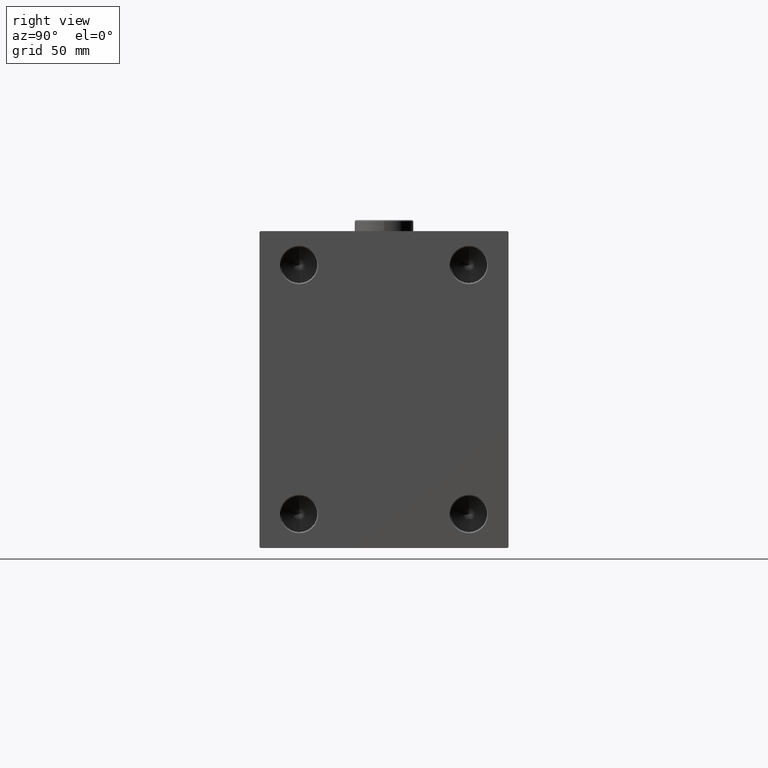
[diagram: clean part render]
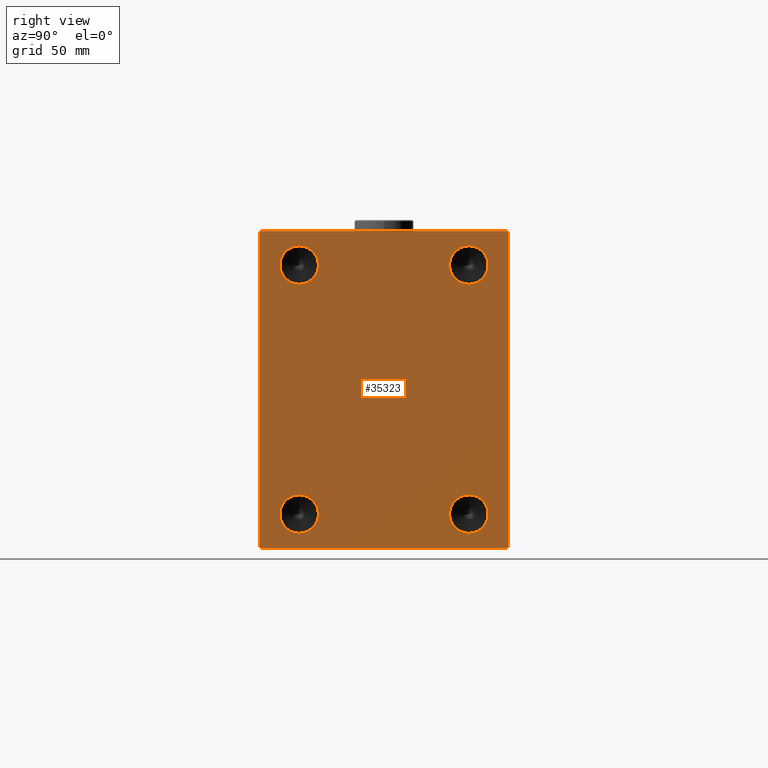
[diagram: same view with one face highlighted and labeled with its STEP entity id]
A machine part, right view. The second image highlights one B-rep face of the part: STEP entity #35323.
In plain terms, the highlighted planar face has unit normal (1, 0, 0).
Its self-contained STEP definition (entity closure, byte-faithful):
#43 = DIRECTION ( 'NONE',  ( 1.000000000000000000, -0.000000000000000000, -0.000000000000000000 ) ) ;
#202 = DIRECTION ( 'NONE',  ( 0.000000000000000000, 0.000000000000000000, -1.000000000000000000 ) ) ;
#1684 = LINE ( 'NONE', #11847, #35828 ) ;
#1994 = VERTEX_POINT ( 'NONE', #41648 ) ;
#2616 = FACE_BOUND ( 'NONE', #36045, .T. ) ;
#2831 = CIRCLE ( 'NONE', #30108, 8.499999999999980460 ) ;
#3112 = LINE ( 'NONE', #21550, #18092 ) ;
#3979 = DIRECTION ( 'NONE',  ( 1.000000000000000000, -0.000000000000000000, -0.000000000000000000 ) ) ;
#4120 = AXIS2_PLACEMENT_3D ( 'NONE', #26092, #43008, #4411 ) ;
#4165 = VERTEX_POINT ( 'NONE', #30315 ) ;
#4321 = EDGE_CURVE ( 'NONE', #14879, #13146, #37321, .T. ) ;
#4355 = CIRCLE ( 'NONE', #30915, 8.499999999999980460 ) ;
#4411 = DIRECTION ( 'NONE',  ( 0.000000000000000000, 0.000000000000000000, -1.000000000000000000 ) ) ;
#4582 = LINE ( 'NONE', #11526, #26140 ) ;
#5251 = CARTESIAN_POINT ( 'NONE',  ( 253.0000000000000000, -55.00000000000000000, 69.50000000000005684 ) ) ;
#6205 = CIRCLE ( 'NONE', #23889, 8.499999999999980460 ) ;
#6378 = DIRECTION ( 'NONE',  ( 0.000000000000000000, 0.000000000000000000, -1.000000000000000000 ) ) ;
#6736 = CARTESIAN_POINT ( 'NONE',  ( 253.0000000000000000, -37.49999999999999289, 63.49999999999997158 ) ) ;
#6969 = AXIS2_PLACEMENT_3D ( 'NONE', #18265, #15954, #44146 ) ;
#7138 = CARTESIAN_POINT ( 'NONE',  ( 253.0000000000000000, -37.49999999999999289, -54.99999999999999289 ) ) ;
#7741 = ORIENTED_EDGE ( 'NONE', *, *, #17975, .F. ) ;
#7852 = VERTEX_POINT ( 'NONE', #36877 ) ;
#8704 = CARTESIAN_POINT ( 'NONE',  ( 253.0000000000000000, -55.00000000000000000, -69.50000000000000000 ) ) ;
#8923 = EDGE_CURVE ( 'NONE', #44920, #17819, #23210, .T. ) ;
#9022 = EDGE_CURVE ( 'NONE', #44117, #15001, #2831, .T. ) ;
#9216 = EDGE_LOOP ( 'NONE', ( #40010, #39411 ) ) ;
#9557 = FACE_BOUND ( 'NONE', #30923, .T. ) ;
#9573 = EDGE_CURVE ( 'NONE', #24885, #17948, #27495, .T. ) ;
#9956 = CARTESIAN_POINT ( 'NONE',  ( 253.0000000000000000, 54.50000000000007105, -69.99999999999998579 ) ) ;
#10100 = DIRECTION ( 'NONE',  ( 1.000000000000000000, -0.000000000000000000, -0.000000000000000000 ) ) ;
#10241 = CARTESIAN_POINT ( 'NONE',  ( 253.0000000000000000, -37.49999999999999289, 55.00000000000000711 ) ) ;
#10375 = DIRECTION ( 'NONE',  ( 1.000000000000000000, -0.000000000000000000, -0.000000000000000000 ) ) ;
#10497 = DIRECTION ( 'NONE',  ( 0.000000000000000000, -9.912705577010325549E-17, 1.000000000000000000 ) ) ;
#10634 = ORIENTED_EDGE ( 'NONE', *, *, #8923, .T. ) ;
#10667 = DIRECTION ( 'NONE',  ( 0.000000000000000000, 0.000000000000000000, -1.000000000000000000 ) ) ;
#10722 = AXIS2_PLACEMENT_3D ( 'NONE', #42101, #43, #10667 ) ;
#10889 = ORIENTED_EDGE ( 'NONE', *, *, #21274, .T. ) ;
#11526 = CARTESIAN_POINT ( 'NONE',  ( 253.0000000000000000, 54.99999999999999289, 70.00000000000001421 ) ) ;
#11847 = CARTESIAN_POINT ( 'NONE',  ( 253.0000000000000000, -55.00000000000000000, 70.00000000000000000 ) ) ;
#12835 = CARTESIAN_POINT ( 'NONE',  ( 253.0000000000000000, -62.24999999999964473, 62.25000000000050449 ) ) ;
#13012 = DIRECTION ( 'NONE',  ( 0.000000000000000000, 0.000000000000000000, -1.000000000000000000 ) ) ;
#13146 = VERTEX_POINT ( 'NONE', #24746 ) ;
#14008 = DIRECTION ( 'NONE',  ( 0.000000000000000000, 0.000000000000000000, -1.000000000000000000 ) ) ;
#14879 = VERTEX_POINT ( 'NONE', #36848 ) ;
#15001 = VERTEX_POINT ( 'NONE', #6736 ) ;
#15097 = CARTESIAN_POINT ( 'NONE',  ( 253.0000000000000000, -37.49999999999999289, 46.50000000000004263 ) ) ;
#15499 = ORIENTED_EDGE ( 'NONE', *, *, #31790, .T. ) ;
#15600 = DIRECTION ( 'NONE',  ( 0.000000000000000000, -0.7071067811865524577, -0.7071067811865426878 ) ) ;
#15954 = DIRECTION ( 'NONE',  ( 1.000000000000000000, -0.000000000000000000, -0.000000000000000000 ) ) ;
#16053 = ORIENTED_EDGE ( 'NONE', *, *, #9022, .F. ) ;
#16078 = DIRECTION ( 'NONE',  ( 0.000000000000000000, 1.000000000000000000, 1.261617073437677752E-16 ) ) ;
#16876 = ORIENTED_EDGE ( 'NONE', *, *, #21938, .T. ) ;
#17181 = LINE ( 'NONE', #27568, #34534 ) ;
#17410 = DIRECTION ( 'NONE',  ( -0.000000000000000000, 0.7071067811865425767, 0.7071067811865525687 ) ) ;
#17819 = VERTEX_POINT ( 'NONE', #5251 ) ;
#17948 = VERTEX_POINT ( 'NONE', #42657 ) ;
#17975 = EDGE_CURVE ( 'NONE', #35530, #4165, #6205, .T. ) ;
#18092 = VECTOR ( 'NONE', #10497, 1000.000000000000000 ) ;
#18265 = CARTESIAN_POINT ( 'NONE',  ( 253.0000000000000000, 37.50000000000000000, 55.00000000000000711 ) ) ;
#18697 = EDGE_CURVE ( 'NONE', #13146, #14879, #44594, .T. ) ;
#19052 = CIRCLE ( 'NONE', #22744, 8.499999999999980460 ) ;
#19526 = LINE ( 'NONE', #33646, #36389 ) ;
#20918 = DIRECTION ( 'NONE',  ( 1.000000000000000000, -0.000000000000000000, -0.000000000000000000 ) ) ;
#21274 = EDGE_CURVE ( 'NONE', #1994, #24885, #3112, .T. ) ;
#21376 = EDGE_CURVE ( 'NONE', #17819, #27665, #1684, .T. ) ;
#21550 = CARTESIAN_POINT ( 'NONE',  ( 253.0000000000000000, 55.00000000000000711, -69.99999999999998579 ) ) ;
#21725 = AXIS2_PLACEMENT_3D ( 'NONE', #7138, #10375, #202 ) ;
#21938 = EDGE_CURVE ( 'NONE', #27665, #22021, #29793, .T. ) ;
#22021 = VERTEX_POINT ( 'NONE', #38362 ) ;
#22220 = DIRECTION ( 'NONE',  ( 0.000000000000000000, 0.000000000000000000, -1.000000000000000000 ) ) ;
#22612 = EDGE_CURVE ( 'NONE', #27323, #7852, #24023, .T. ) ;
#22744 = AXIS2_PLACEMENT_3D ( 'NONE', #10241, #3979, #42348 ) ;
#22867 = VERTEX_POINT ( 'NONE', #9956 ) ;
#22935 = EDGE_CURVE ( 'NONE', #17948, #44920, #4582, .T. ) ;
#23210 = LINE ( 'NONE', #12835, #44147 ) ;
#23472 = CARTESIAN_POINT ( 'NONE',  ( 253.0000000000000000, 37.50000000000000000, -54.99999999999999289 ) ) ;
#23696 = VECTOR ( 'NONE', #41846, 1000.000000000000114 ) ;
#23889 = AXIS2_PLACEMENT_3D ( 'NONE', #27861, #20918, #35047 ) ;
#24023 = CIRCLE ( 'NONE', #4120, 8.499999999999980460 ) ;
#24746 = CARTESIAN_POINT ( 'NONE',  ( 253.0000000000000000, 37.50000000000000000, 63.49999999999997158 ) ) ;
#24885 = VERTEX_POINT ( 'NONE', #28590 ) ;
#24952 = EDGE_CURVE ( 'NONE', #7852, #27323, #45386, .T. ) ;
#25243 = EDGE_LOOP ( 'NONE', ( #28466, #10634, #41175, #16876, #36664, #15499, #10889, #32676 ) ) ;
#26092 = CARTESIAN_POINT ( 'NONE',  ( 253.0000000000000000, -37.49999999999999289, -54.99999999999999289 ) ) ;
#26140 = VECTOR ( 'NONE', #29291, 1000.000000000000000 ) ;
#26378 = PLANE ( 'NONE',  #35350 ) ;
#26612 = FACE_BOUND ( 'NONE', #43881, .T. ) ;
#27249 = CARTESIAN_POINT ( 'NONE',  ( 253.0000000000000000, -62.25000000000152767, -62.24999999999806732 ) ) ;
#27323 = VERTEX_POINT ( 'NONE', #35075 ) ;
#27495 = LINE ( 'NONE', #38384, #23696 ) ;
#27568 = CARTESIAN_POINT ( 'NONE',  ( 253.0000000000000000, 62.25000000000041211, -62.24999999999954525 ) ) ;
#27665 = VERTEX_POINT ( 'NONE', #8704 ) ;
#27826 = DIRECTION ( 'NONE',  ( 1.000000000000000000, -0.000000000000000000, -0.000000000000000000 ) ) ;
#27861 = CARTESIAN_POINT ( 'NONE',  ( 253.0000000000000000, 37.50000000000000000, -54.99999999999999289 ) ) ;
#28014 = ORIENTED_EDGE ( 'NONE', *, *, #18697, .F. ) ;
#28435 = VECTOR ( 'NONE', #43918, 1000.000000000000000 ) ;
#28466 = ORIENTED_EDGE ( 'NONE', *, *, #22935, .T. ) ;
#28590 = CARTESIAN_POINT ( 'NONE',  ( 253.0000000000000000, 54.99999999999999289, 69.50000000000007105 ) ) ;
#29291 = DIRECTION ( 'NONE',  ( 0.000000000000000000, -1.000000000000000000, -1.261617073437677999E-16 ) ) ;
#29793 = LINE ( 'NONE', #27249, #28435 ) ;
#30108 = AXIS2_PLACEMENT_3D ( 'NONE', #35246, #27826, #6378 ) ;
#30315 = CARTESIAN_POINT ( 'NONE',  ( 253.0000000000000000, 37.50000000000000000, -63.49999999999995737 ) ) ;
#30554 = FACE_BOUND ( 'NONE', #9216, .T. ) ;
#30915 = AXIS2_PLACEMENT_3D ( 'NONE', #23472, #10100, #14008 ) ;
#30923 = EDGE_LOOP ( 'NONE', ( #7741, #31921 ) ) ;
#31790 = EDGE_CURVE ( 'NONE', #22867, #1994, #17181, .T. ) ;
#31921 = ORIENTED_EDGE ( 'NONE', *, *, #38648, .F. ) ;
#32676 = ORIENTED_EDGE ( 'NONE', *, *, #9573, .T. ) ;
#33646 = CARTESIAN_POINT ( 'NONE',  ( 253.0000000000000000, -55.00000000000000000, -70.00000000000000000 ) ) ;
#33762 = EDGE_CURVE ( 'NONE', #15001, #44117, #19052, .T. ) ;
#34265 = CARTESIAN_POINT ( 'NONE',  ( 253.0000000000000000, 0.000000000000000000, 0.000000000000000000 ) ) ;
#34534 = VECTOR ( 'NONE', #17410, 999.9999999999998863 ) ;
#35047 = DIRECTION ( 'NONE',  ( 0.000000000000000000, 0.000000000000000000, -1.000000000000000000 ) ) ;
#35075 = CARTESIAN_POINT ( 'NONE',  ( 253.0000000000000000, -37.49999999999999289, -46.50000000000002842 ) ) ;
#35246 = CARTESIAN_POINT ( 'NONE',  ( 253.0000000000000000, -37.49999999999999289, 55.00000000000000711 ) ) ;
#35323 = ADVANCED_FACE ( 'NONE', ( #26612, #2616, #30554, #9557, #37743 ), #26378, .T. ) ;
#35350 = AXIS2_PLACEMENT_3D ( 'NONE', #34265, #40982, #13012 ) ;
#35530 = VERTEX_POINT ( 'NONE', #45118 ) ;
#35828 = VECTOR ( 'NONE', #22220, 1000.000000000000000 ) ;
#36045 = EDGE_LOOP ( 'NONE', ( #38668, #16053 ) ) ;
#36389 = VECTOR ( 'NONE', #16078, 1000.000000000000000 ) ;
#36664 = ORIENTED_EDGE ( 'NONE', *, *, #43927, .T. ) ;
#36848 = CARTESIAN_POINT ( 'NONE',  ( 253.0000000000000000, 37.50000000000000000, 46.50000000000004263 ) ) ;
#36877 = CARTESIAN_POINT ( 'NONE',  ( 253.0000000000000000, -37.49999999999999289, -63.49999999999995737 ) ) ;
#37321 = CIRCLE ( 'NONE', #10722, 8.499999999999980460 ) ;
#37743 = FACE_OUTER_BOUND ( 'NONE', #25243, .T. ) ;
#38362 = CARTESIAN_POINT ( 'NONE',  ( 253.0000000000000000, -54.50000000000002842, -70.00000000000000000 ) ) ;
#38384 = CARTESIAN_POINT ( 'NONE',  ( 253.0000000000000000, 62.25000000000004263, 62.25000000000004263 ) ) ;
#38648 = EDGE_CURVE ( 'NONE', #4165, #35530, #4355, .T. ) ;
#38668 = ORIENTED_EDGE ( 'NONE', *, *, #33762, .F. ) ;
#39411 = ORIENTED_EDGE ( 'NONE', *, *, #24952, .F. ) ;
#40010 = ORIENTED_EDGE ( 'NONE', *, *, #22612, .F. ) ;
#40982 = DIRECTION ( 'NONE',  ( 1.000000000000000000, 0.000000000000000000, 0.000000000000000000 ) ) ;
#41175 = ORIENTED_EDGE ( 'NONE', *, *, #21376, .T. ) ;
#41455 = CARTESIAN_POINT ( 'NONE',  ( 253.0000000000000000, -54.50000000000004974, 70.00000000000000000 ) ) ;
#41648 = CARTESIAN_POINT ( 'NONE',  ( 253.0000000000000000, 55.00000000000000711, -69.50000000000004263 ) ) ;
#41846 = DIRECTION ( 'NONE',  ( -0.000000000000000000, -0.7071067811865474617, 0.7071067811865474617 ) ) ;
#42101 = CARTESIAN_POINT ( 'NONE',  ( 253.0000000000000000, 37.50000000000000000, 55.00000000000000711 ) ) ;
#42348 = DIRECTION ( 'NONE',  ( 0.000000000000000000, 0.000000000000000000, -1.000000000000000000 ) ) ;
#42657 = CARTESIAN_POINT ( 'NONE',  ( 253.0000000000000000, 54.50000000000004974, 70.00000000000001421 ) ) ;
#43008 = DIRECTION ( 'NONE',  ( 1.000000000000000000, -0.000000000000000000, -0.000000000000000000 ) ) ;
#43881 = EDGE_LOOP ( 'NONE', ( #28014, #45277 ) ) ;
#43918 = DIRECTION ( 'NONE',  ( -0.000000000000000000, 0.7071067811865279218, -0.7071067811865671127 ) ) ;
#43927 = EDGE_CURVE ( 'NONE', #22021, #22867, #19526, .T. ) ;
#44117 = VERTEX_POINT ( 'NONE', #15097 ) ;
#44146 = DIRECTION ( 'NONE',  ( 0.000000000000000000, 0.000000000000000000, -1.000000000000000000 ) ) ;
#44147 = VECTOR ( 'NONE', #15600, 1000.000000000000000 ) ;
#44594 = CIRCLE ( 'NONE', #6969, 8.499999999999980460 ) ;
#44920 = VERTEX_POINT ( 'NONE', #41455 ) ;
#45118 = CARTESIAN_POINT ( 'NONE',  ( 253.0000000000000000, 37.50000000000000000, -46.50000000000002842 ) ) ;
#45277 = ORIENTED_EDGE ( 'NONE', *, *, #4321, .F. ) ;
#45386 = CIRCLE ( 'NONE', #21725, 8.499999999999980460 ) ;